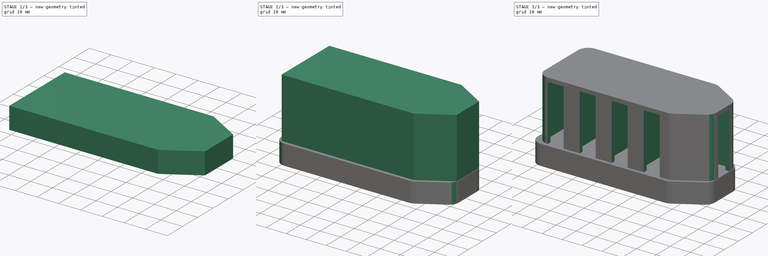
[diagram: build sequence overview — one tinted view per stage of 3, left to right]
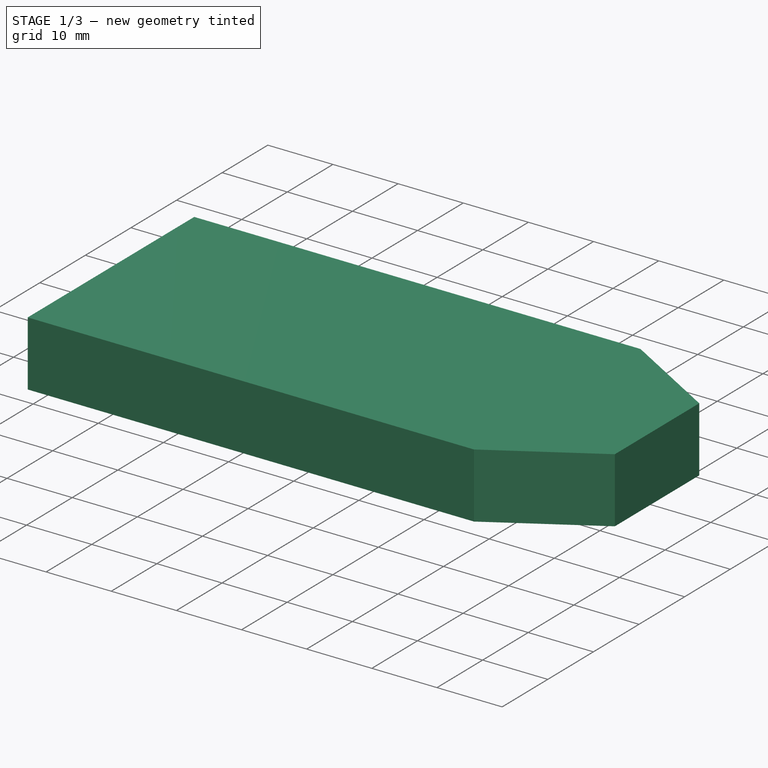
[diagram: stage 1 of 3 — iso view after this stage's code; geometry added in this stage tinted green]
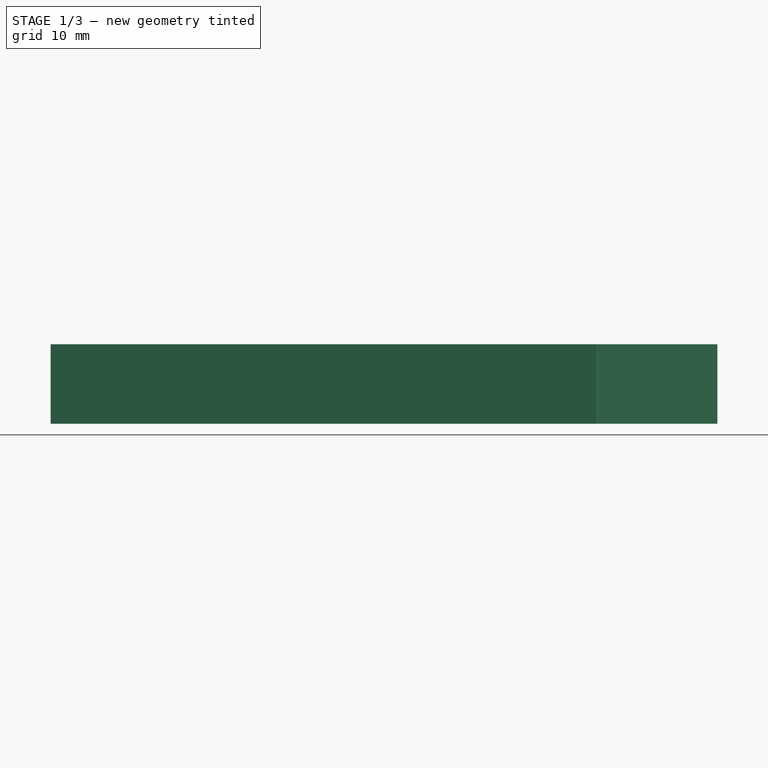
[diagram: stage 1 of 3 — front view after this stage's code; geometry added in this stage tinted green]
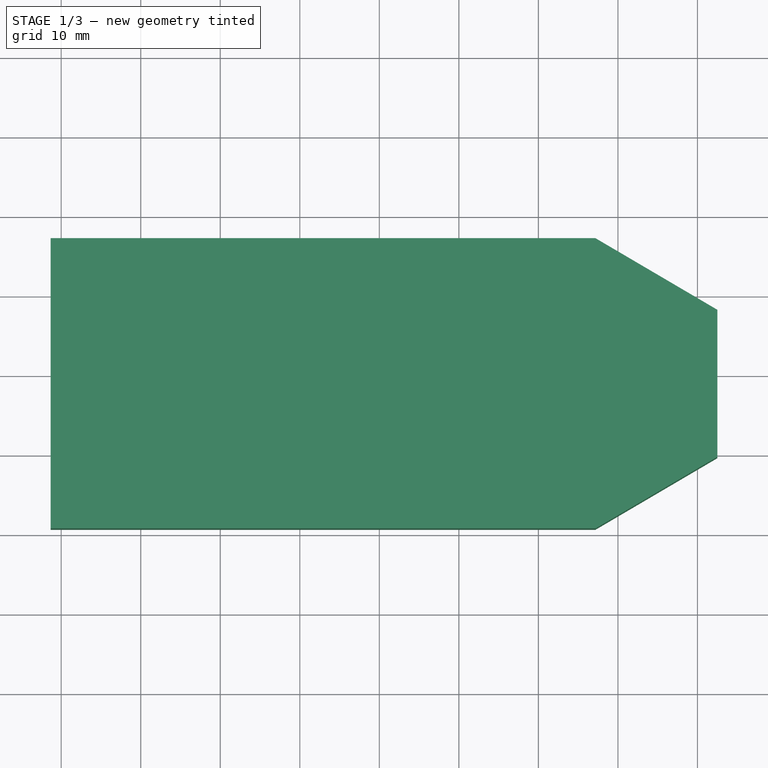
[diagram: stage 1 of 3 — top view after this stage's code; geometry added in this stage tinted green]
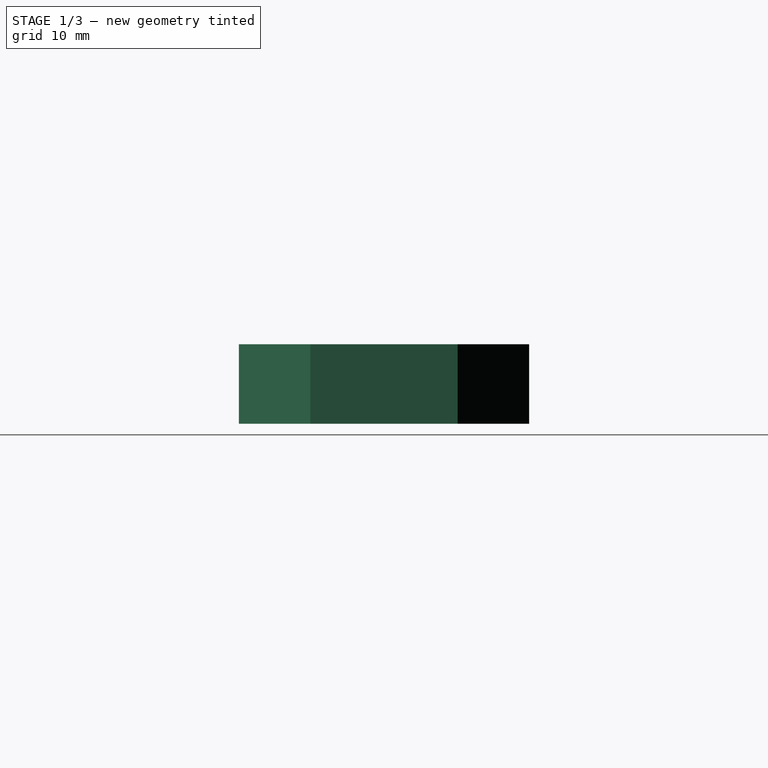
[diagram: stage 1 of 3 — right view after this stage's code; geometry added in this stage tinted green]
FCSTD DOCUMENT  (FreeCAD 0.16R6703 (Git))
Label: sudoku set  storage
License: All rights reserved
LicenseURL: http://en.wikipedia.org/wiki/All_rights_reserved
objects: Sketcher::SketchObject×4, PartDesign::Fillet×3, PartDesign::Pad×2, PartDesign::Pocket×2, App::DocumentObjectGroup×2
note: 15 computed .brp shape members not serialized (recipe doc carries the construction recipe); baked Part::Feature solids carry a one-line shape summary decoded from their .brp

FEATURE [Sketcher::SketchObject] Sketch002
  sketch-geometry (6):
    g0: LineSegment StartX=-71.3221 StartY=17.2054 StartZ=0 EndX=-71.3221 EndY=-19.2946 EndZ=0
    g1: LineSegment StartX=-71.3221 StartY=-19.2946 StartZ=0 EndX=-2.82211 EndY=-19.2946 EndZ=0
    g2: LineSegment StartX=-2.82211 StartY=-19.2946 StartZ=0 EndX=12.4961 EndY=-10.2946 EndZ=0
    g3: LineSegment StartX=12.4961 StartY=-10.2946 StartZ=0 EndX=12.4961 EndY=8.20538 EndZ=0
    g4: LineSegment StartX=12.4961 StartY=8.20538 StartZ=0 EndX=-2.82211 EndY=17.2054 EndZ=0
    g5: LineSegment StartX=-2.82211 StartY=17.2054 StartZ=0 EndX=-71.3221 EndY=17.2054 EndZ=0
  constraints (15):
    c: Vertical(g0)
    c: Coincident(g0,g1)
    c: Horizontal(g1)
    c: Coincident(g1,g2)
    c: Coincident(g2,g3)
    c: Vertical(g3)
    c: Coincident(g3,g4)
    c: Coincident(g4,g5)
    c: Coincident(g5,g0)
    c: Distance(g5) = 68.5
    c: Equal(g1,g5)
    c: Parallel(g5,g1)
    c: Distance(g0) = 36.5
    c: Equal(g2,g4)
    c: Distance(g3) = 18.5
FEATURE [App::DocumentObjectGroup] Group  label="box"
  Group = -> [Pocket,Pad,Fillet]
FEATURE [PartDesign::Pad] Pad001
  Length = 10
  Length2 = 100
  Sketch = -> Sketch002
  Type = 0
FEATURE [Sketcher::SketchObject] Sketch003
  ExternalGeometry = -> [Pad001]
  Placement = pos=(0,0,0) rot=(1,0,0;3.14159rad)
  Support = -> Pad001 [Face7]
  sketch-geometry (6):
    g0: LineSegment StartX=-70.3221 StartY=18.2946 StartZ=0 EndX=-70.3221 EndY=-16.2054 EndZ=0
    g1: LineSegment StartX=-70.3221 StartY=-16.2054 StartZ=0 EndX=-3.82211 EndY=-16.2054 EndZ=0
    g2: LineSegment StartX=-3.82211 StartY=-16.2054 StartZ=0 EndX=11.4961 EndY=-7.20538 EndZ=0
    g3: LineSegment StartX=11.4961 StartY=-7.20538 StartZ=0 EndX=11.4961 EndY=9.29462 EndZ=0
    g4: LineSegment StartX=11.4961 StartY=9.29462 StartZ=0 EndX=-3.82211 EndY=18.2946 EndZ=0
    g5: LineSegment StartX=-3.82211 StartY=18.2946 StartZ=0 EndX=-70.3221 EndY=18.2946 EndZ=0
  constraints (18):
    c: Vertical(g0)
    c: Coincident(g0,g1)
    c: Horizontal(g1)
    c: Coincident(g1,g2)
    c: Coincident(g2,g3)
    c: Vertical(g3)
    c: Coincident(g3,g4)
    c: Coincident(g4,g5)
    c: Coincident(g5,g0)
    c: Distance(g5) = 66.5
    c: Equal(g1,g5)
    c: Parallel(g5,g1)
    c: Distance(g0) = 34.5
    c: Equal(g2,g4)
    c: Distance(g3) = 16.5
    c: DistanceX(g-4,g0) = 1
    c: DistanceY(g0,g-4) = 1
    c: DistanceX(g3,g-5) = 1
FEATURE [PartDesign::Pocket] Pocket001
  Length = 8
  Sketch = -> Sketch003
  Type = 0
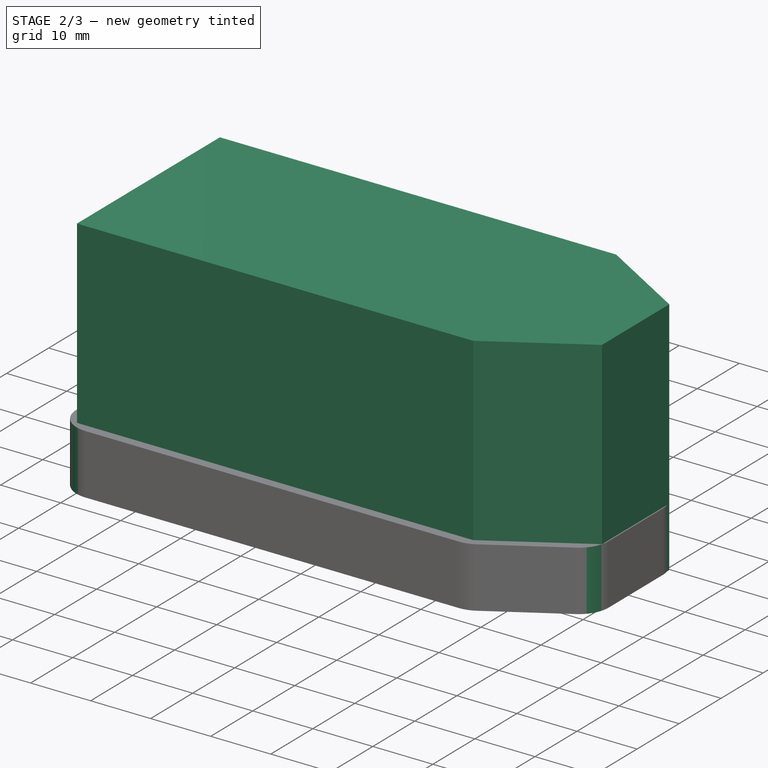
[diagram: stage 2 of 3 — iso view after this stage's code; geometry added in this stage tinted green]
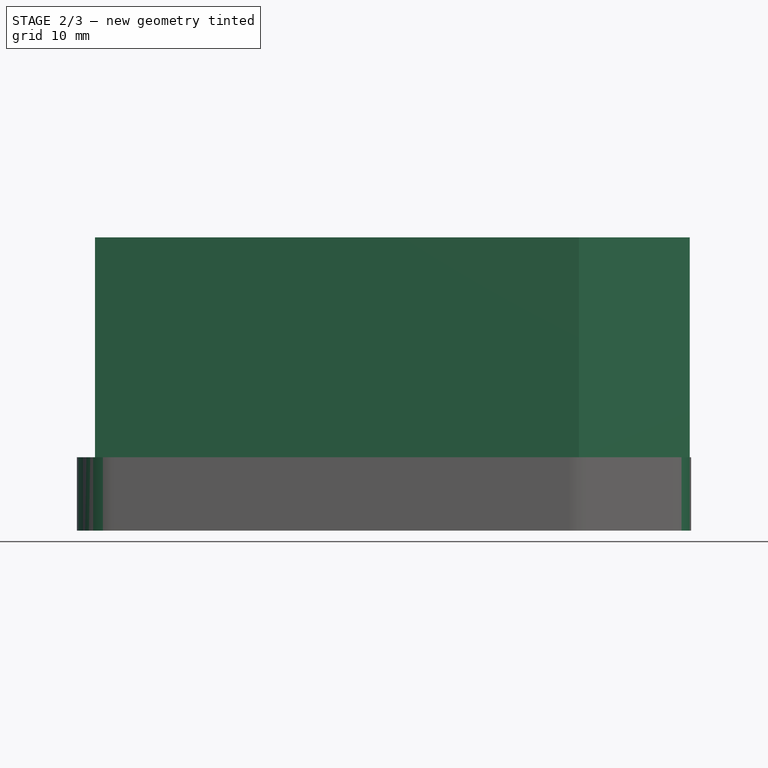
[diagram: stage 2 of 3 — front view after this stage's code; geometry added in this stage tinted green]
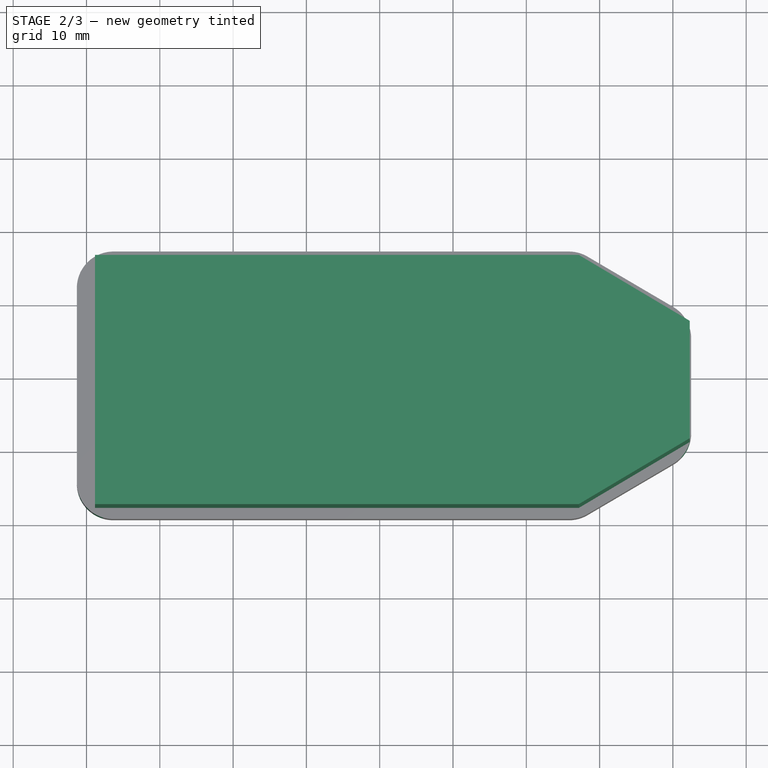
[diagram: stage 2 of 3 — top view after this stage's code; geometry added in this stage tinted green]
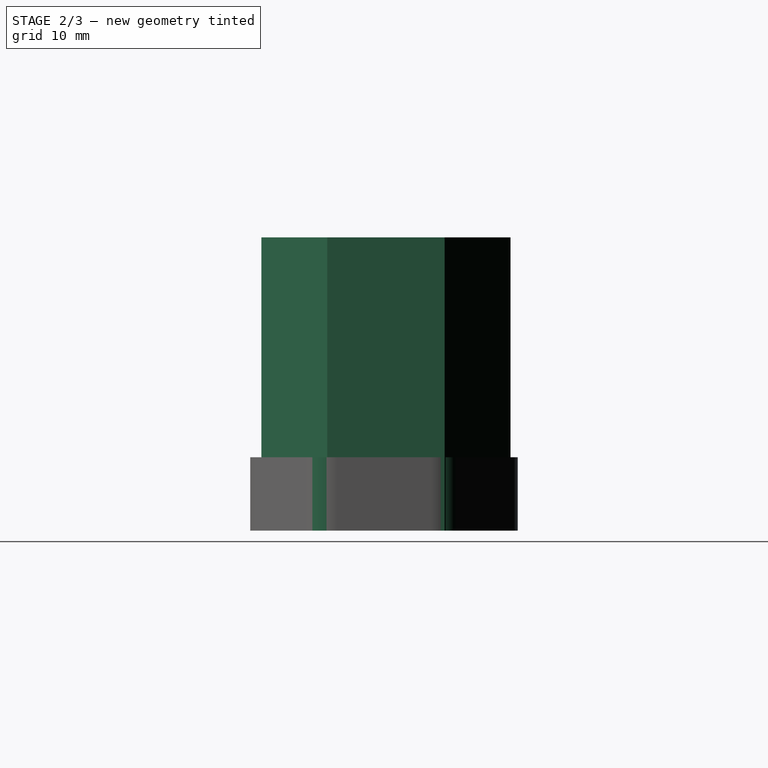
[diagram: stage 2 of 3 — right view after this stage's code; geometry added in this stage tinted green]
FEATURE [Sketcher::SketchObject] Sketch
  sketch-geometry (6):
    g0: LineSegment StartX=-68.8346 StartY=16.221 StartZ=0 EndX=-68.8346 EndY=-17.779 EndZ=0
    g1: LineSegment StartX=-68.8346 StartY=-17.779 StartZ=0 EndX=-2.83458 EndY=-17.779 EndZ=0
    g2: LineSegment StartX=-2.83458 StartY=-17.779 StartZ=0 EndX=12.3085 EndY=-8.77899 EndZ=0
    g3: LineSegment StartX=12.3085 StartY=-8.77899 StartZ=0 EndX=12.3085 EndY=7.22101 EndZ=0
    g4: LineSegment StartX=12.3085 StartY=7.22101 StartZ=0 EndX=-2.83458 EndY=16.221 EndZ=0
    g5: LineSegment StartX=-2.83458 StartY=16.221 StartZ=0 EndX=-68.8346 EndY=16.221 EndZ=0
  constraints (15):
    c: Vertical(g0)
    c: Coincident(g0,g1)
    c: Horizontal(g1)
    c: Coincident(g1,g2)
    c: Coincident(g2,g3)
    c: Vertical(g3)
    c: Coincident(g3,g4)
    c: Coincident(g4,g5)
    c: Coincident(g5,g0)
    c: Distance(g5) = 66
    c: Equal(g1,g5)
    c: Parallel(g5,g1)
    c: Distance(g0) = 34
    c: Equal(g2,g4)
    c: Distance(g3) = 16
FEATURE [PartDesign::Pad] Pad
  Length = 40
  Length2 = 100
  Sketch = -> Sketch
  Type = 0
FEATURE [PartDesign::Fillet] Fillet001
  Base = -> Pocket001 [Edge35,Edge33,Edge31,Edge25,Edge27,Edge29]
  Radius = 5
FEATURE [PartDesign::Fillet] Fillet002
  Base = -> Fillet001 [Edge43,Edge44,Edge46,Edge50,Edge52,Edge48]
  Radius = 5
FEATURE [App::DocumentObjectGroup] Group001  label="lid"
  Group = -> [Pad001,Pocket001,Fillet001,Fillet002]
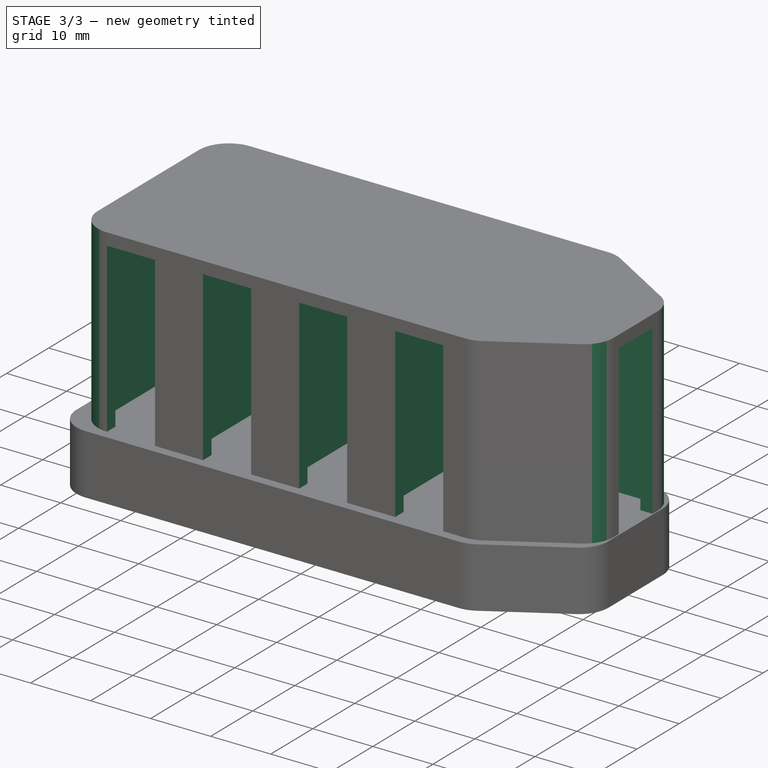
[diagram: stage 3 of 3 — iso view after this stage's code; geometry added in this stage tinted green]
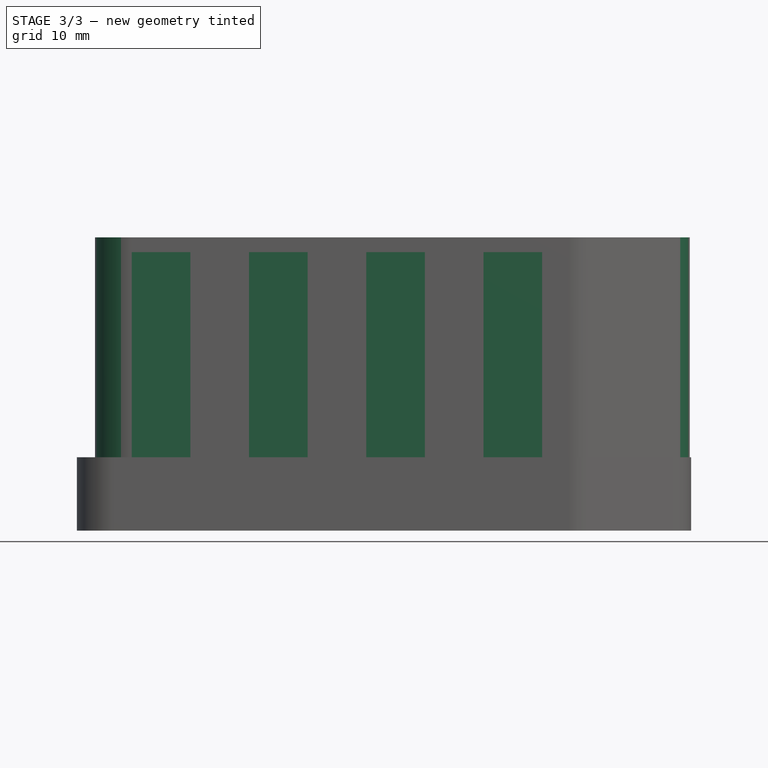
[diagram: stage 3 of 3 — front view after this stage's code; geometry added in this stage tinted green]
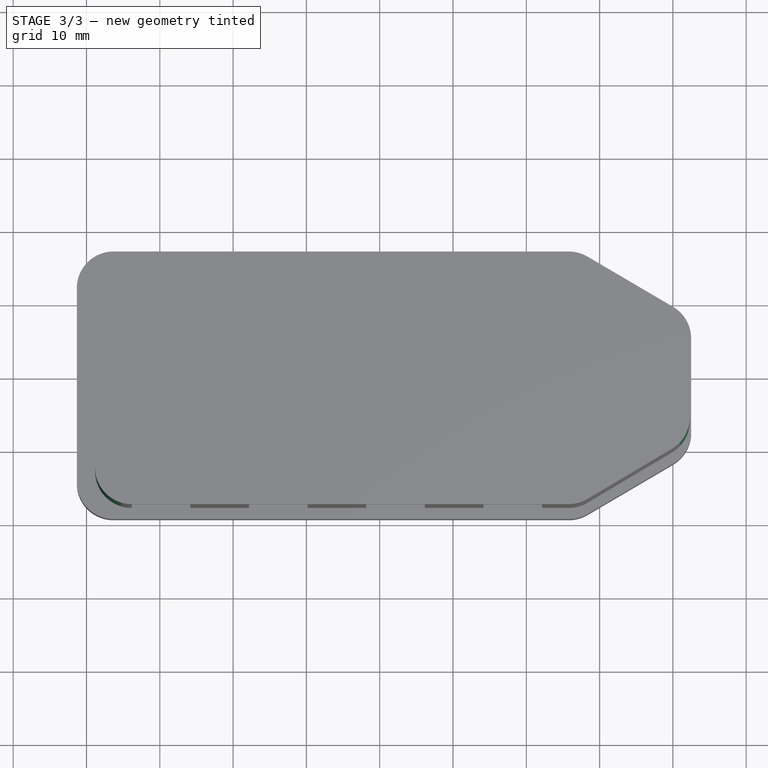
[diagram: stage 3 of 3 — top view after this stage's code; geometry added in this stage tinted green]
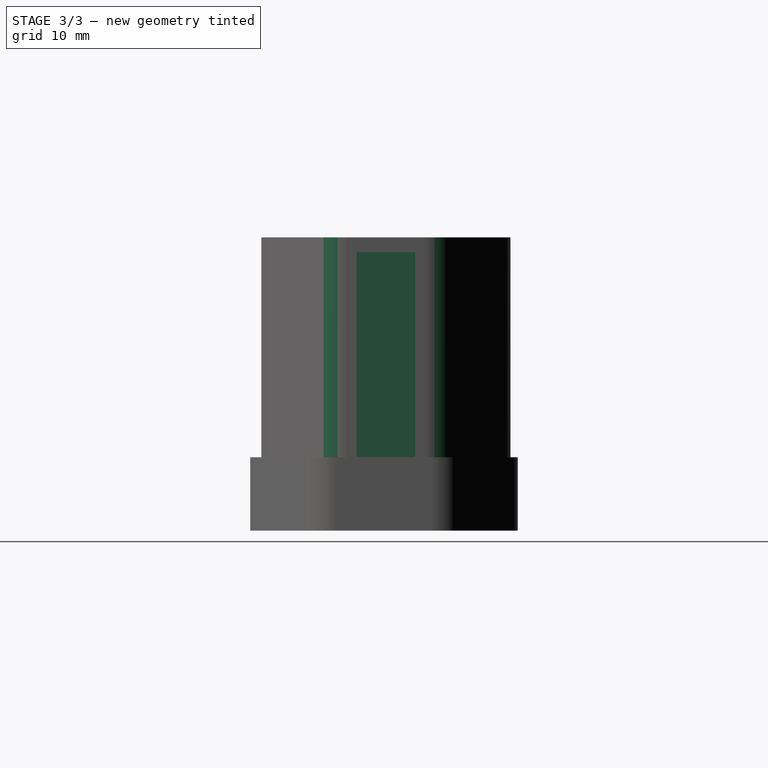
[diagram: stage 3 of 3 — right view after this stage's code; geometry added in this stage tinted green]
FEATURE [Sketcher::SketchObject] Sketch001
  ExternalGeometry = -> [Pad]
  Placement = pos=(0,0,0) rot=(1,0,0;3.14159rad)
  Support = -> Pad [Face7]
  sketch-geometry (72):
    g0: LineSegment StartX=-52.8346 StartY=15.779 StartZ=0 EndX=-52.8346 EndY=1.77899 EndZ=0
    g1: LineSegment StartX=-52.8346 StartY=1.77899 StartZ=0 EndX=-66.8346 EndY=1.77899 EndZ=0
    g2: LineSegment StartX=-66.8346 StartY=1.77899 StartZ=0 EndX=-66.8346 EndY=15.779 EndZ=0
    g3: LineSegment StartX=-66.8346 StartY=-0.221011 StartZ=0 EndX=-52.8346 EndY=-0.221011 EndZ=0
    g4: LineSegment StartX=-66.8346 StartY=-14.221 StartZ=0 EndX=-66.8346 EndY=-0.221011 EndZ=0
    g5: LineSegment StartX=-52.8346 StartY=-0.221011 StartZ=0 EndX=-52.8346 EndY=-14.221 EndZ=0
    g6: LineSegment StartX=-36.8346 StartY=1.77899 StartZ=0 EndX=-50.8346 EndY=1.77899 EndZ=0
    g7: LineSegment StartX=-36.8346 StartY=15.779 StartZ=0 EndX=-36.8346 EndY=1.77899 EndZ=0
    g8: LineSegment StartX=-50.8346 StartY=1.77899 StartZ=0 EndX=-50.8346 EndY=15.779 EndZ=0
    g9: LineSegment StartX=-36.8346 StartY=-0.221011 StartZ=0 EndX=-36.8346 EndY=-14.221 EndZ=0
    g10: LineSegment StartX=-50.8346 StartY=-0.221011 StartZ=0 EndX=-36.8346 EndY=-0.221011 EndZ=0
    g11: LineSegment StartX=-50.8346 StartY=-14.221 StartZ=0 EndX=-50.8346 EndY=-0.221011 EndZ=0
    g12: LineSegment StartX=-20.8346 StartY=15.779 StartZ=0 EndX=-20.8346 EndY=1.77899 EndZ=0
    g13: LineSegment StartX=-20.8346 StartY=1.77899 StartZ=0 EndX=-34.8346 EndY=1.77899 EndZ=0
    g14: LineSegment StartX=-34.8346 StartY=1.77899 StartZ=0 EndX=-34.8346 EndY=15.779 EndZ=0
    g15: LineSegment StartX=-20.8346 StartY=-0.221011 StartZ=0 EndX=-20.8346 EndY=-14.221 EndZ=0
    g16: LineSegment StartX=-34.8346 StartY=-0.221011 StartZ=0 EndX=-20.8346 EndY=-0.221011 EndZ=0
    g17: LineSegment StartX=-34.8346 StartY=-14.221 StartZ=0 EndX=-34.8346 EndY=-0.221011 EndZ=0
    g18: LineSegment StartX=-4.83458 StartY=1.77899 StartZ=0 EndX=-18.8346 EndY=1.77899 EndZ=0
    g19: LineSegment StartX=-4.83458 StartY=15.779 StartZ=0 EndX=-4.83458 EndY=1.77899 EndZ=0
    g20: LineSegment StartX=-18.8346 StartY=1.77899 StartZ=0 EndX=-18.8346 EndY=15.779 EndZ=0
    g21: LineSegment StartX=-4.83458 StartY=-0.221011 StartZ=0 EndX=-4.83458 EndY=-14.221 EndZ=0
    g22: LineSegment StartX=-18.8346 StartY=-0.221011 StartZ=0 EndX=-4.83458 EndY=-0.221011 EndZ=0
    g23: LineSegment StartX=-18.8346 StartY=-14.221 StartZ=0 EndX=-18.8346 EndY=-0.221011 EndZ=0
    g24: LineSegment StartX=10.3085 StartY=-6.22101 StartZ=0 EndX=-3.69148 EndY=-6.22101 EndZ=0
    g25: LineSegment StartX=-3.69148 StartY=7.77899 StartZ=0 EndX=10.3085 EndY=7.77899 EndZ=0
    g26: LineSegment StartX=-3.69148 StartY=-6.22101 StartZ=0 EndX=-3.69148 EndY=7.77899 EndZ=0
    g27: LineSegment StartX=-63.8346 StartY=17.779 StartZ=0 EndX=-55.8346 EndY=17.779 EndZ=0
    g28: LineSegment StartX=-55.8346 StartY=17.779 StartZ=0 EndX=-55.8346 EndY=15.779 EndZ=0
    g29: LineSegment StartX=-63.8346 StartY=15.779 StartZ=0 EndX=-63.8346 EndY=17.779 EndZ=0
    g30: LineSegment StartX=-63.8346 StartY=15.779 StartZ=0 EndX=-66.8346 EndY=15.779 EndZ=0
    g31: LineSegment StartX=-55.8346 StartY=15.779 StartZ=0 EndX=-52.8346 EndY=15.779 EndZ=0
    g32: LineSegment StartX=-50.8346 StartY=15.779 StartZ=0 EndX=-47.8346 EndY=15.779 EndZ=0
    g33: LineSegment StartX=-47.8346 StartY=15.779 StartZ=0 EndX=-47.8346 EndY=17.779 EndZ=0
    g34: LineSegment StartX=-47.8346 StartY=17.779 StartZ=0 EndX=-39.8346 EndY=17.779 EndZ=0
    g35: LineSegment StartX=-39.8346 StartY=17.779 StartZ=0 EndX=-39.8346 EndY=15.779 EndZ=0
    g36: LineSegment StartX=-39.8346 StartY=15.779 StartZ=0 EndX=-36.8346 EndY=15.779 EndZ=0
    g37: LineSegment StartX=-34.8346 StartY=15.779 StartZ=0 EndX=-31.8346 EndY=15.779 EndZ=0
    g38: LineSegment StartX=-31.8346 StartY=15.779 StartZ=0 EndX=-31.8346 EndY=17.779 EndZ=0
    g39: LineSegment StartX=-31.8346 StartY=17.779 StartZ=0 EndX=-23.8346 EndY=17.779 EndZ=0
    g40: LineSegment StartX=-23.8346 StartY=17.779 StartZ=0 EndX=-23.8346 EndY=15.779 EndZ=0
    g41: LineSegment StartX=-23.8346 StartY=15.779 StartZ=0 EndX=-20.8346 EndY=15.779 EndZ=0
    g42: LineSegment StartX=-18.8346 StartY=15.779 StartZ=0 EndX=-15.8346 EndY=15.779 EndZ=0
    g43: LineSegment StartX=-15.8346 StartY=15.779 StartZ=0 EndX=-15.8346 EndY=17.779 EndZ=0
    g44: LineSegment StartX=-15.8346 StartY=17.779 StartZ=0 EndX=-7.83458 EndY=17.779 EndZ=0
    g45: LineSegment StartX=-7.83458 StartY=17.779 StartZ=0 EndX=-7.83458 EndY=15.779 EndZ=0
    g46: LineSegment StartX=-7.83458 StartY=15.779 StartZ=0 EndX=-4.83458 EndY=15.779 EndZ=0
    g47: LineSegment StartX=-66.8346 StartY=-14.221 StartZ=0 EndX=-63.8346 EndY=-14.221 EndZ=0
    g48: LineSegment StartX=-63.8346 StartY=-14.221 StartZ=0 EndX=-63.8346 EndY=-16.221 EndZ=0
    g49: LineSegment StartX=-63.8346 StartY=-16.221 StartZ=0 EndX=-55.8346 EndY=-16.221 EndZ=0
    g50: LineSegment StartX=-55.8346 StartY=-16.221 StartZ=0 EndX=-55.8346 EndY=-14.221 EndZ=0
    g51: LineSegment StartX=-55.8346 StartY=-14.221 StartZ=0 EndX=-52.8346 EndY=-14.221 EndZ=0
    g52: LineSegment StartX=-50.8346 StartY=-14.221 StartZ=0 EndX=-47.8346 EndY=-14.221 EndZ=0
    g53: LineSegment StartX=-47.8346 StartY=-14.221 StartZ=0 EndX=-47.8346 EndY=-16.221 EndZ=0
    g54: LineSegment StartX=-47.8346 StartY=-16.221 StartZ=0 EndX=-39.8346 EndY=-16.221 EndZ=0
    g55: LineSegment StartX=-39.8346 StartY=-16.221 StartZ=0 EndX=-39.8346 EndY=-14.221 EndZ=0
    g56: LineSegment StartX=-39.8346 StartY=-14.221 StartZ=0 EndX=-36.8346 EndY=-14.221 EndZ=0
    g57: LineSegment StartX=-34.8346 StartY=-14.221 StartZ=0 EndX=-31.8346 EndY=-14.221 EndZ=0
    g58: LineSegment StartX=-31.8346 StartY=-14.221 StartZ=0 EndX=-31.8346 EndY=-16.221 EndZ=0
    g59: LineSegment StartX=-31.8346 StartY=-16.221 StartZ=0 EndX=-23.8346 EndY=-16.221 EndZ=0
    g60: LineSegment StartX=-23.8346 StartY=-16.221 StartZ=0 EndX=-23.8346 EndY=-14.221 EndZ=0
    g61: LineSegment StartX=-23.8346 StartY=-14.221 StartZ=0 EndX=-20.8346 EndY=-14.221 EndZ=0
    g62: LineSegment StartX=-4.83458 StartY=-14.221 StartZ=0 EndX=-7.83458 EndY=-14.221 EndZ=0
    g63: LineSegment StartX=-7.83458 StartY=-14.221 StartZ=0 EndX=-7.83458 EndY=-16.221 EndZ=0
    g64: LineSegment StartX=-7.83458 StartY=-16.221 StartZ=0 EndX=-15.8346 EndY=-16.221 EndZ=0
    g65: LineSegment StartX=-15.8346 StartY=-16.221 StartZ=0 EndX=-15.8346 EndY=-14.221 EndZ=0
    g66: LineSegment StartX=-15.8346 StartY=-14.221 StartZ=0 EndX=-18.8346 EndY=-14.221 EndZ=0
    g67: LineSegment StartX=10.3085 StartY=7.77899 StartZ=0 EndX=10.3085 EndY=4.77899 EndZ=0
    g68: LineSegment StartX=10.3085 StartY=4.77899 StartZ=0 EndX=12.3085 EndY=4.77899 EndZ=0
    g69: LineSegment StartX=12.3085 StartY=4.77899 StartZ=0 EndX=12.3085 EndY=-3.22101 EndZ=0
    g70: LineSegment StartX=12.3085 StartY=-3.22101 StartZ=0 EndX=10.3085 EndY=-3.22101 EndZ=0
    g71: LineSegment StartX=10.3085 StartY=-3.22101 StartZ=0 EndX=10.3085 EndY=-6.22101 EndZ=0
  constraints (220):
    c: Coincident(g0,g1)
    c: Coincident(g1,g2)
    c: Horizontal(g1)
    c: Vertical(g0)
    c: Vertical(g2)
    c: DistanceX(g-4,g2) = 2
    c: DistanceY(g2,g-4) = 2
    c: Coincident(g3,g5)
    c: Coincident(g4,g3)
    c: Horizontal(g3)
    c: Vertical(g5)
    c: Vertical(g4)
    c: Equal(g0,g5) = 14
    c: DistanceX(g-5,g4) = 2
    c: DistanceY(g-5,g4) = 2
    c: Coincident(g7,g6)
    c: Coincident(g6,g8)
    c: Horizontal(g6)
    c: Vertical(g7)
    c: Vertical(g8)
    c: Equal(g1,g6) = 14
    c: Equal(g0,g7) = 14
    c: DistanceX(g0,g8) = 2
    c: DistanceY(g0,g8) = 0
    c: Coincident(g10,g9)
    c: Coincident(g11,g10)
    c: Horizontal(g10)
    c: Vertical(g9)
    c: Vertical(g11)
    c: DistanceY(g5,g11) = 0
    c: DistanceX(g5,g11) = 2
    c: Distance(g10) = 14
    c: Distance(g9) = 14
    c: Coincident(g12,g13)
    c: Coincident(g13,g14)
    c: Horizontal(g13)
    c: Vertical(g12)
    c: Vertical(g14)
    c: Equal(g13,g6)
    c: Equal(g14,g7)
    c: DistanceX(g6,g13) = 2
    c: DistanceY(g6,g13) = 0
    c: Coincident(g16,g15)
    c: Coincident(g17,g16)
    c: Horizontal(g16)
    c: Vertical(g15)
    c: Vertical(g17)
    c: DistanceX(g9,g17) = 2
    c: DistanceY(g9,g17) = 0
    c: Equal(g16,g13)
    c: Equal(g12,g15)
    c: Coincident(g19,g18)
    c: Coincident(g18,g20)
    c: Horizontal(g18)
    c: Vertical(g19)
    c: Vertical(g20)
    c: DistanceX(g12,g20) = 2
    c: DistanceY(g12,g20) = 0
    c: Equal(g18,g13)
    c: Equal(g19,g12)
    c: Coincident(g22,g21)
    c: Coincident(g23,g22)
    c: Horizontal(g22)
    c: Vertical(g21)
    c: Vertical(g23)
    c: Equal(g21,g19)
    c: DistanceX(g15,g23) = 2
    c: DistanceY(g15,g23) = 0
    c: Coincident(g24,g26)
    c: Coincident(g26,g25)
    c: Horizontal(g25)
    c: Horizontal(g24)
    c: Vertical(g26)
    c: Equal(g24,g18)
    c: DistanceX(g25,g-6) = 2
    c: DistanceY(g25,g-6) = 1
    c: Coincident(g27,g28)
    c: Coincident(g29,g27)
    c: Horizontal(g27)
    c: Vertical(g28)
    c: Vertical(g29)
    c: DistanceY(g28,g0) = 0
    c: Distance(g29) = 2
    c: Coincident(g30,g29)
    c: Coincident(g30,g2)
    c: Horizontal(g30)
    c: Coincident(g31,g28)
    c: Coincident(g31,g0)
    c: Equal(g30,g31)
    c: Distance(g27) = 8
    c: Coincident(g8,g32)
    c: Horizontal(g32)
    c: Coincident(g32,g33)
    c: Coincident(g33,g34)
    c: Horizontal(g34)
    c: Coincident(g34,g35)
    c: Coincident(g35,g36)
    c: Coincident(g36,g7)
    c: Horizontal(g36)
    c: Equal(g32,g36)
    c: Perpendicular(g36,g35)
    c: Perpendicular(g32,g33)
    c: Distance(g34) = 8
    c: Distance(g33) = 2
    c: Equal(g28,g33)
    c: Coincident(g14,g37)
    c: Coincident(g37,g38)
    c: Vertical(g38)
    c: Coincident(g38,g39)
    c: Horizontal(g39)
    c: Coincident(g39,g40)
    c: Vertical(g40)
    c: Coincident(g40,g41)
    c: Coincident(g41,g12)
    c: Equal(g37,g41)
    c: Parallel(g37,g13)
    c: Parallel(g41,g13)
    c: Distance(g12) = 14
    c: Equal(g38,g35)
    c: Distance(g39) = 8
    c: Coincident(g20,g42)
    c: Coincident(g42,g43)
    c: Coincident(g43,g44)
    c: Horizontal(g44)
    c: Coincident(g44,g45)
    c: Coincident(g45,g46)
    c: Coincident(g46,g19)
    c: Parallel(g42,g46)
    c: Parallel(g42,g18)
    c: Distance(g22,g18) = 2
    c: Distance(g20) = 14
    c: Equal(g40,g43)
    c: Perpendicular(g46,g45)
    c: Perpendicular(g42,g43)
    c: Distance(g44) = 8
    c: Equal(g42,g46)
    c: Coincident(g4,g47)
    c: Horizontal(g47)
    c: Coincident(g47,g48)
    c: Vertical(g48)
    c: Coincident(g48,g49)
    c: Horizontal(g49)
    c: Coincident(g49,g50)
    c: Vertical(g50)
    c: Coincident(g50,g51)
    c: Coincident(g51,g5)
    c: Horizontal(g51)
    c: Equal(g51,g47)
    c: Distance(g49) = 8
    c: Equal(g48,g29)
    c: Coincident(g11,g52)
    c: Coincident(g52,g53)
    c: Vertical(g53)
    c: Coincident(g53,g54)
    c: Horizontal(g54)
    c: Coincident(g54,g55)
    c: Vertical(g55)
    c: Coincident(g55,g56)
    c: Coincident(g56,g9)
    c: Horizontal(g56)
    c: Equal(g56,g52)
    c: Distance(g54) = 8
    c: Equal(g53,g50)
    c: Coincident(g17,g57)
    c: Horizontal(g57)
    c: Coincident(g57,g58)
    c: PointOnObject(g58,g-5)
    c: Vertical(g58)
    c: Coincident(g58,g59)
    c: Horizontal(g59)
    c: Coincident(g59,g60)
    c: Vertical(g60)
    c: Coincident(g60,g61)
    c: Coincident(g61,g15)
    c: Horizontal(g61)
    c: Equal(g57,g61)
    c: Equal(g58,g55)
    c: Distance(g59) = 8
    c: DistanceX(g22,g18) = 0
    c: Coincident(g21,g62)
    c: Horizontal(g62)
    c: Coincident(g62,g63)
    c: Vertical(g63)
    c: Coincident(g63,g64)
    c: Horizontal(g64)
    c: Coincident(g64,g65)
    c: Vertical(g65)
    c: Coincident(g65,g66)
    c: Coincident(g66,g23)
    c: Horizontal(g66)
    c: Equal(g66,g62)
    c: Distance(g64) = 8
    c: Equal(g60,g65)
    c: Distance(g22) = 14
    c: Coincident(g25,g67)
    c: Vertical(g67)
    c: Coincident(g67,g68)
    c: Horizontal(g68)
    c: Coincident(g68,g69)
    c: Vertical(g69)
    c: Coincident(g69,g70)
    c: Horizontal(g70)
    c: Coincident(g70,g71)
    c: Coincident(g71,g24)
    c: Vertical(g71)
    c: Equal(g67,g71)
    c: Distance(g69) = 8
    c: Equal(g68,g63)
    c: DistanceY(g3,g0) = 2
    c: DistanceY(g9,g6) = 2
    c: DistanceY(g15,g12) = 2
    c: Equal(g22,g18)
    c: Equal(g9,g17)
    c: Equal(g11,g3)
    c: Equal(g1,g0)
    c: Equal(g2,g4)
    c: Equal(g20,g18)
    c: Equal(g18,g22)
    c: Equal(g18,g26)
    c: Equal(g26,g25)
FEATURE [PartDesign::Pocket] Pocket
  Length = 38
  Sketch = -> Sketch001
  Type = 0
FEATURE [PartDesign::Fillet] Fillet
  Base = -> Pocket [Edge149,Edge23,Edge1,Edge186,Edge41,Edge2]
  Radius = 5
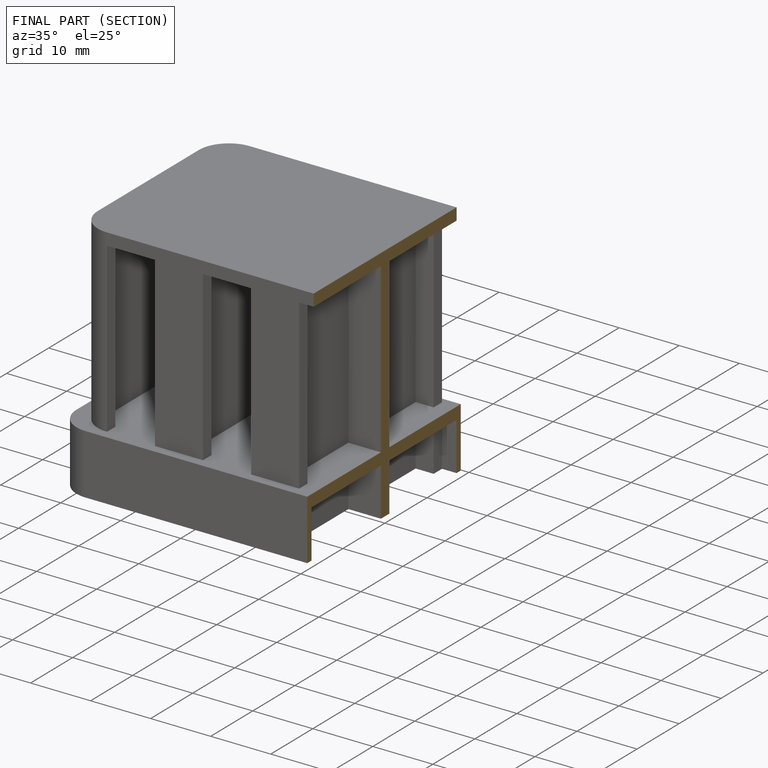
[diagram: finished part — half-section view (interior)]
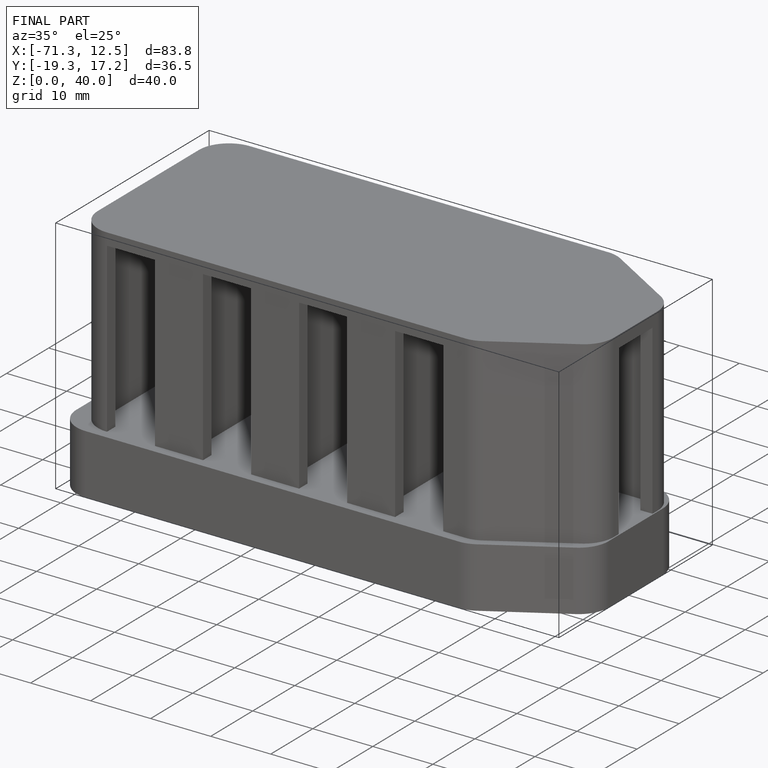
[diagram: finished part — iso view with bounding-box wireframe]
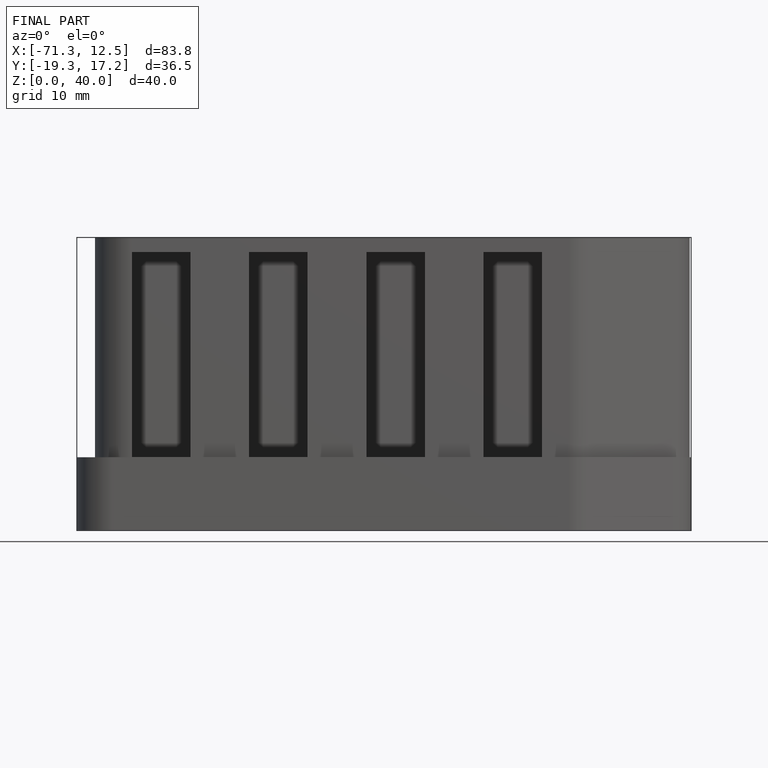
[diagram: finished part — front view with bounding-box wireframe]
